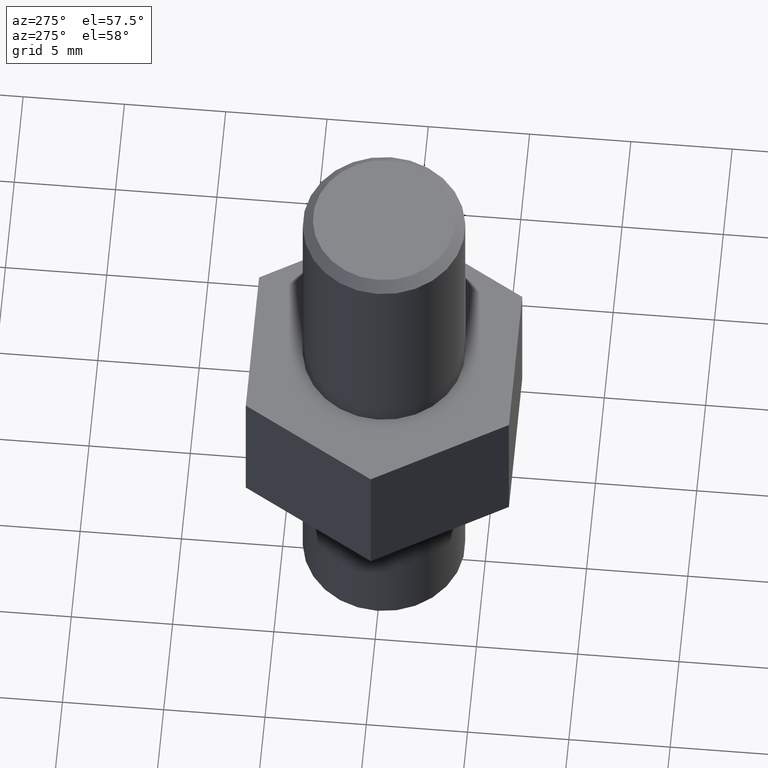
[diagram: clean part render]
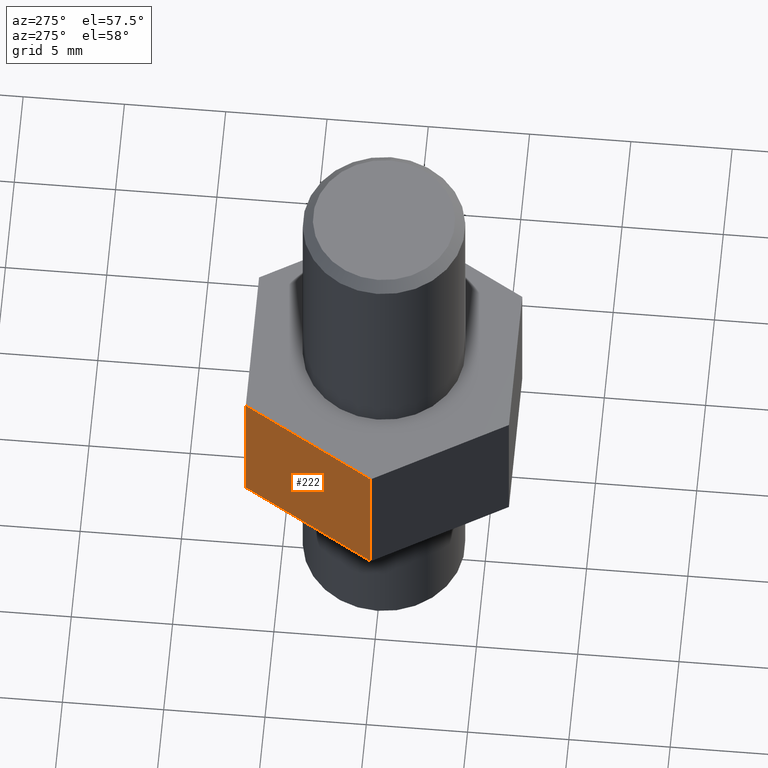
[diagram: same view with one face highlighted and labeled with its STEP entity id]
A machine part, auxiliary view. The second image highlights one B-rep face of the part: STEP entity #222.
In plain terms, the highlighted planar face has unit normal (-0.866, 0.5, 0).
Its self-contained STEP definition (entity closure, byte-faithful):
#24=PLANE('',#265);
#38=FACE_OUTER_BOUND('',#53,.T.);
#53=EDGE_LOOP('',(#188,#189,#190,#191));
#66=LINE('',#366,#88);
#73=LINE('',#379,#95);
#74=LINE('',#382,#96);
#75=LINE('',#383,#97);
#88=VECTOR('',#305,10.);
#95=VECTOR('',#316,10.);
#96=VECTOR('',#319,10.);
#97=VECTOR('',#320,10.);
#118=VERTEX_POINT('',#363);
#119=VERTEX_POINT('',#365);
#123=VERTEX_POINT('',#377);
#124=VERTEX_POINT('',#381);
#140=EDGE_CURVE('',#118,#119,#66,.T.);
#147=EDGE_CURVE('',#118,#123,#73,.T.);
#148=EDGE_CURVE('',#124,#123,#74,.T.);
#149=EDGE_CURVE('',#119,#124,#75,.T.);
#188=ORIENTED_EDGE('',*,*,#140,.F.);
#189=ORIENTED_EDGE('',*,*,#147,.T.);
#190=ORIENTED_EDGE('',*,*,#148,.F.);
#191=ORIENTED_EDGE('',*,*,#149,.F.);
#222=ADVANCED_FACE('',(#38),#24,.T.);
#265=AXIS2_PLACEMENT_3D('',#380,#317,#318);
#305=DIRECTION('',(0.5,0.866025403784439,0.));
#316=DIRECTION('',(0.,0.,1.));
#317=DIRECTION('center_axis',(-0.866025403784439,0.5,0.));
#318=DIRECTION('ref_axis',(-0.5,-0.866025403784439,0.));
#319=DIRECTION('',(-0.5,-0.866025403784439,0.));
#320=DIRECTION('',(0.,0.,1.));
#363=CARTESIAN_POINT('',(-7.5,0.,5.25));
#365=CARTESIAN_POINT('',(-3.75,6.49519052838329,5.25));
#366=CARTESIAN_POINT('',(-7.5,0.,5.25));
#377=CARTESIAN_POINT('',(-7.5,0.,12.75));
#379=CARTESIAN_POINT('',(-7.5,0.,5.25));
#380=CARTESIAN_POINT('Origin',(-3.75,6.49519052838329,5.25));
#381=CARTESIAN_POINT('',(-3.75,6.49519052838329,12.75));
#382=CARTESIAN_POINT('',(-7.5,0.,12.75));
#383=CARTESIAN_POINT('',(-3.75,6.49519052838329,5.25));